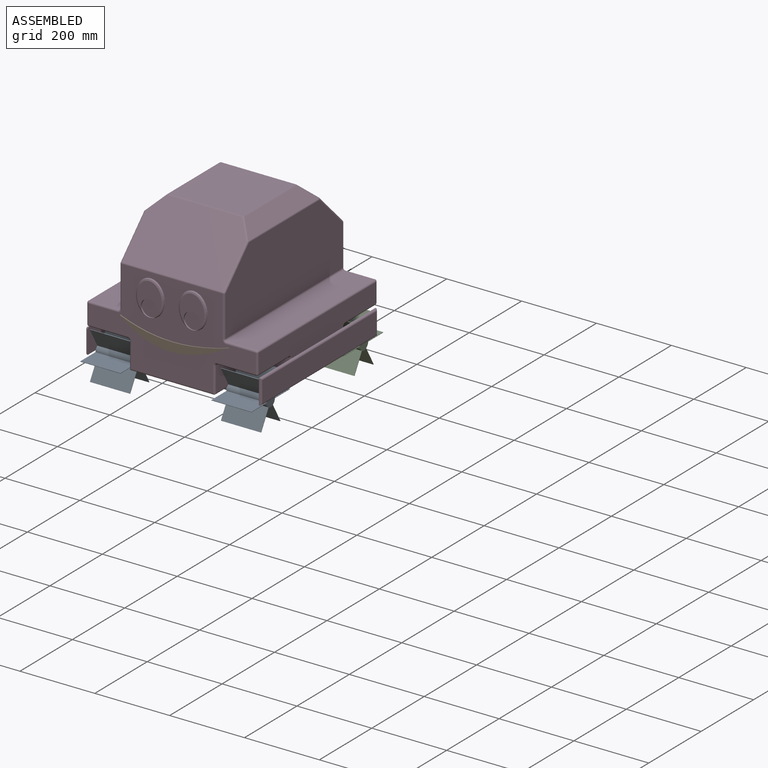
[diagram: assembled view]
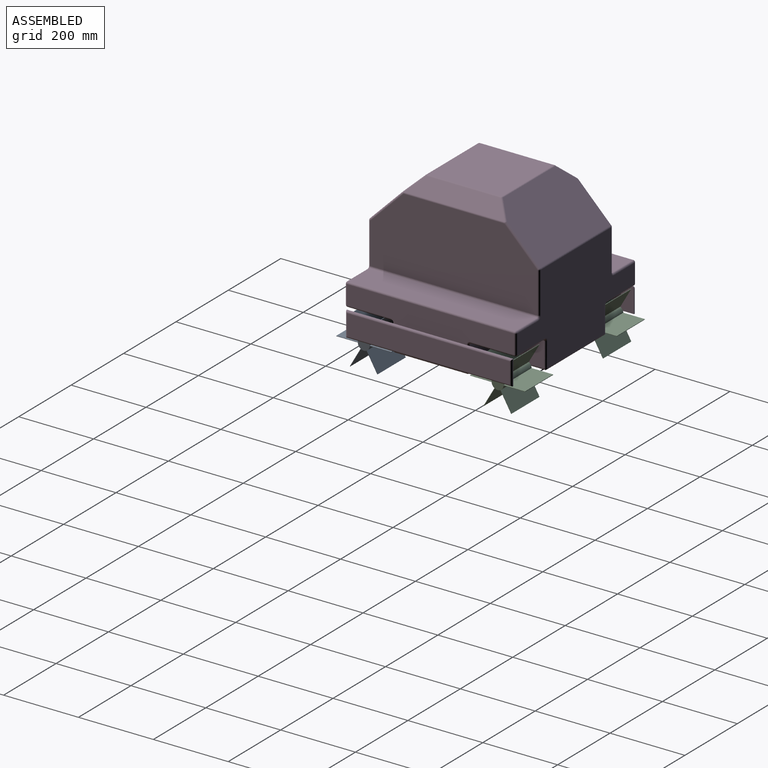
[diagram: assembled view, second angle]
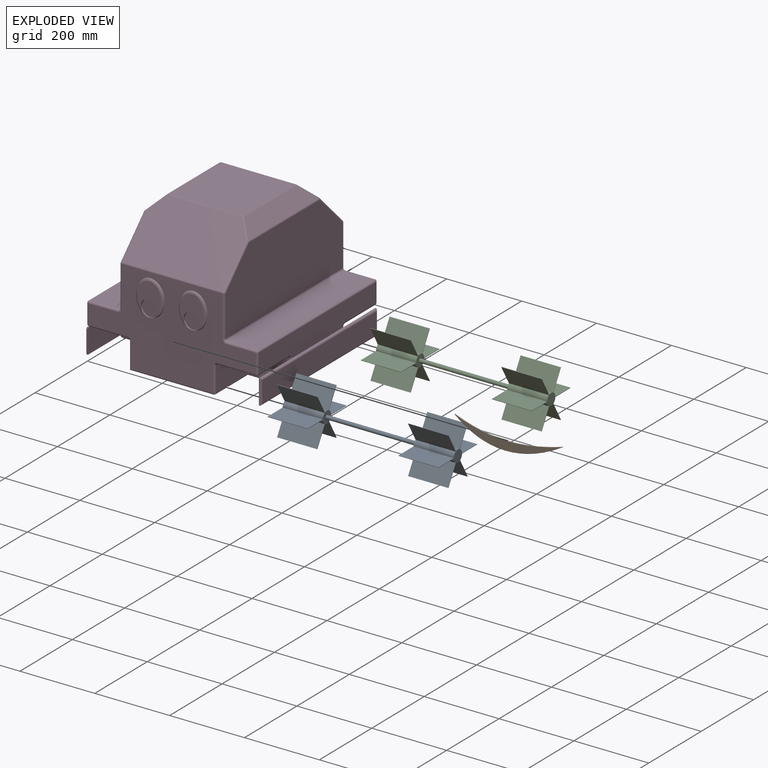
[diagram: exploded view]
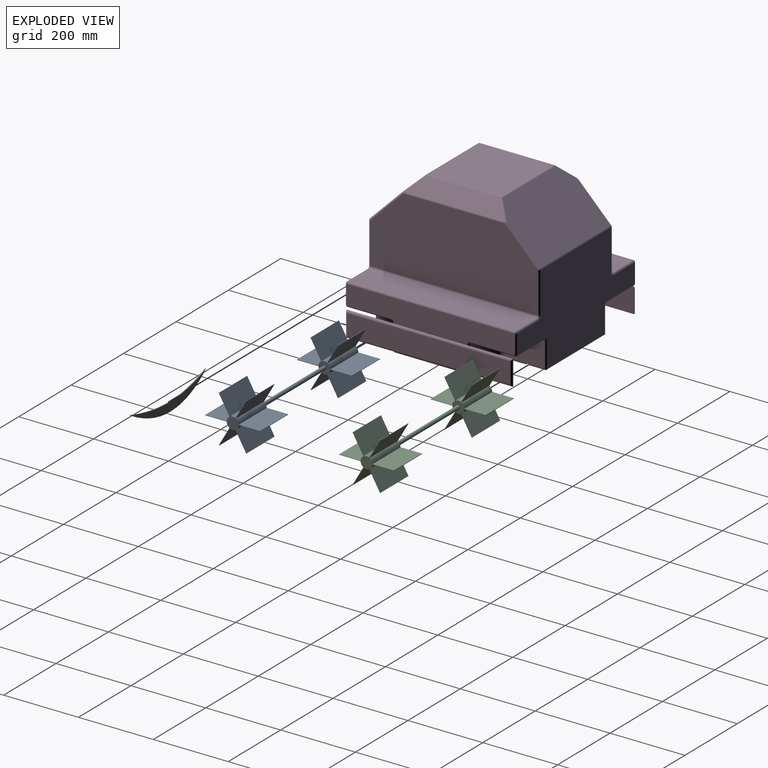
[diagram: exploded view, second angle]
ASSEMBLY  parts=4 mates=2
PART A: 53 faces, bbox 127.6x146.7x457.2 mm
  f0: plane 146.72x127.62mm, normal (0,0,1), area 1177.2mm2, adj f1,f2,f3,f4,f5,f6,f7,f8
  f1: plane 107.19x1.12mm, normal (0,1,0), area 119.8mm2, adj f0,f2,f24,f27
  f2: plane 107.19x57.49mm, normal (1,0,0), area 6162.5mm2, adj f0,f1,f3,f27
  f3: cylinder r=15.88mm len=107.19mm, axis (0,0,-1), area 1662.1mm2, adj f0,f2,f4,f27
  f4: plane 107.19x49.79mm, normal (-0.5,0.87,0), area 6162.5mm2, adj f0,f3,f5,f27
  f5: plane 107.19x0.97mm, normal (0.87,0.5,0), area 119.8mm2, adj f0,f4,f6,f27
  f6: plane 107.19x49.79mm, normal (0.5,-0.87,0), area 6162.5mm2, adj f0,f5,f7,f27
  f7: cylinder r=15.88mm len=107.19mm, axis (0,0,-1), area 1662.1mm2, adj f0,f6,f8,f27
  f8: plane 107.19x49.79mm, normal (0.5,0.87,0), area 6162.5mm2, adj f0,f7,f9,f27
  f9: plane 107.19x0.97mm, normal (0.87,-0.5,0), area 119.8mm2, adj f0,f8,f10,f27
  f10: plane 107.19x49.79mm, normal (-0.5,-0.87,0), area 6162.5mm2, adj f0,f9,f11,f27
  f11: cylinder r=15.88mm len=107.19mm, axis (0,0,-1), area 1662.1mm2, adj f0,f10,f12,f27
  f12: plane 107.19x57.49mm, normal (1,0,0), area 6162.5mm2, adj f0,f11,f13,f27
  f13: plane 107.19x1.12mm, normal (0,-1,0), area 119.8mm2, adj f0,f12,f14,f27
  f14: plane 107.19x57.49mm, normal (-1,0,0), area 6162.5mm2, adj f0,f13,f15,f27
  f15: cylinder r=15.88mm len=107.19mm, axis (0,0,-1), area 1662.1mm2, adj f0,f14,f16,f27
  f16: plane 107.19x49.79mm, normal (0.5,-0.87,0), area 6162.5mm2, adj f0,f15,f17,f27
  f17: plane 107.19x0.97mm, normal (-0.87,-0.5,0), area 119.8mm2, adj f0,f16,f18,f27
  f18: plane 107.19x49.79mm, normal (-0.5,0.87,0), area 6162.5mm2, adj f0,f17,f19,f27
  f19: cylinder r=15.88mm len=107.19mm, axis (0,0,-1), area 1662.1mm2, adj f0,f18,f20,f27
  f20: plane 107.19x49.79mm, normal (-0.5,-0.87,0), area 6162.5mm2, adj f0,f19,f21,f27
  f21: plane 107.19x0.97mm, normal (-0.87,0.5,0), area 119.8mm2, adj f0,f20,f22,f27
  f22: plane 107.19x49.79mm, normal (0.5,0.87,0), area 6162.5mm2, adj f0,f21,f23,f27
  f23: cylinder r=15.88mm len=107.19mm, axis (0,0,-1), area 1662.1mm2, adj f0,f22,f24,f27
  f24: plane 107.19x57.49mm, normal (-1,0,0), area 6162.5mm2, adj f0,f1,f23,f27
  f25: plane 146.72x127.62mm, normal (0,0,1), area 1096.1mm2, adj f26,f28,f29,f30,f31,f32,f33,f34
  f26: cylinder r=5.08mm len=242.82mm, axis (0,0,-1), area 7750.6mm2, adj f25,f27
  f27: plane 146.72x127.62mm, normal (0,0,-1), area 1096.1mm2, adj f1,f2,f3,f4,f5,f6,f7,f8
  f28: plane 107.19x57.49mm, normal (-1,0,0), area 6162.5mm2, adj f25,f29,f51,f52
  f29: cylinder r=15.88mm len=107.19mm, axis (0,0,-1), area 1662.1mm2, adj f25,f28,f30,f52
  f30: plane 107.19x49.79mm, normal (0.5,0.87,0), area 6162.5mm2, adj f25,f29,f31,f52
  f31: plane 107.19x0.97mm, normal (-0.87,0.5,0), area 119.8mm2, adj f25,f30,f32,f52
  f32: plane 107.19x49.79mm, normal (-0.5,-0.87,0), area 6162.5mm2, adj f25,f31,f33,f52
  f33: cylinder r=15.88mm len=107.19mm, axis (0,0,-1), area 1662.1mm2, adj f25,f32,f34,f52
  f34: plane 107.19x49.79mm, normal (-0.5,0.87,0), area 6162.5mm2, adj f25,f33,f35,f52
  f35: plane 107.19x0.97mm, normal (-0.87,-0.5,0), area 119.8mm2, adj f25,f34,f36,f52
  f36: plane 107.19x49.79mm, normal (0.5,-0.87,0), area 6162.5mm2, adj f25,f35,f37,f52
  f37: cylinder r=15.88mm len=107.19mm, axis (0,0,-1), area 1662.1mm2, adj f25,f36,f38,f52
  f38: plane 107.19x57.49mm, normal (-1,0,0), area 6162.5mm2, adj f25,f37,f39,f52
  f39: plane 107.19x1.12mm, normal (0,-1,0), area 119.8mm2, adj f25,f38,f40,f52
  f40: plane 107.19x57.49mm, normal (1,0,0), area 6162.5mm2, adj f25,f39,f41,f52
  f41: cylinder r=15.88mm len=107.19mm, axis (0,0,-1), area 1662.1mm2, adj f25,f40,f42,f52
  f42: plane 107.19x49.79mm, normal (-0.5,-0.87,0), area 6162.5mm2, adj f25,f41,f43,f52
  f43: plane 107.19x0.97mm, normal (0.87,-0.5,0), area 119.8mm2, adj f25,f42,f44,f52
  f44: plane 107.19x49.79mm, normal (0.5,0.87,0), area 6162.5mm2, adj f25,f43,f45,f52
  f45: cylinder r=15.88mm len=107.19mm, axis (0,0,-1), area 1662.1mm2, adj f25,f44,f46,f52
  f46: plane 107.19x49.79mm, normal (0.5,-0.87,0), area 6162.5mm2, adj f25,f45,f47,f52
  f47: plane 107.19x0.97mm, normal (0.87,0.5,0), area 119.8mm2, adj f25,f46,f48,f52
  f48: plane 107.19x49.79mm, normal (-0.5,0.87,0), area 6162.5mm2, adj f25,f47,f49,f52
  f49: cylinder r=15.88mm len=107.19mm, axis (0,0,-1), area 1662.1mm2, adj f25,f48,f50,f52
  f50: plane 107.19x57.49mm, normal (1,0,0), area 6162.5mm2, adj f25,f49,f51,f52
  f51: plane 107.19x1.12mm, normal (0,1,0), area 119.8mm2, adj f25,f28,f50,f52
  f52: plane 146.72x127.62mm, normal (0,0,-1), area 1177.2mm2, adj f28,f29,f30,f31,f32,f33,f34,f35
PART B: 4 faces, bbox 290.5x61.4x2.5 mm
  f0: extruded ~290.54x27.83mm, area 754.2mm2, adj f1,f2,f3
  f1: extruded ~290.54x52.04mm, area 795.6mm2, adj f0,f2,f3
  f2: plane 290.54x61.4mm, normal (0,0,1), area 4771.3mm2, adj f0,f1
  f3: plane 290.54x61.4mm, normal (0,0,-1), area 4771.3mm2, adj f0,f1
PART C: same geometry as A
PART D: 177 faces, bbox 469.9x462.3x381 mm
  f0: plane 447.04x61.4mm, normal (1,0,0), area 24910mm2, adj f12,f13,f44,f45,f52,f58,f131,f166
  f1: plane 269.24x124.02mm, normal (0,-0.71,0.71), area 45479.1mm2, adj f3,f8,f15,f122,f140,f165
  f2: plane 269.24x124.02mm, normal (0,0.71,0.71), area 45479.1mm2, adj f4,f9,f16,f126,f145,f156
  f3: cylinder r=5.08mm len=269.24mm, axis (1,0,0), area 1074.2mm2, adj f1,f10,f138,f164
  f4: cylinder r=5.08mm len=269.24mm, axis (-1,0,0), area 1074.2mm2, adj f2,f11,f143,f153
  f5: cylinder r=5.08mm len=51.24mm, axis (0,0,-1), area 408.8mm2, adj f10,f20,f67,f154
  f6: cylinder r=5.08mm len=51.24mm, axis (0,0,1), area 408.8mm2, adj f11,f20,f102,f149
  f7: plane 269.24x35.12mm, normal (-0.71,0,0.71), area 11629.3mm2, adj f8,f9,f121,f161
  f8: cylinder r=5.08mm len=38.72mm, axis (-0.58,-0.58,-0.58), area 323.6mm2, adj f1,f7,f120,f163
  f9: cylinder r=5.08mm len=38.72mm, axis (-0.58,0.58,-0.58), area 323.6mm2, adj f2,f7,f123,f159
  f10: plane 447.04x246.82mm, normal (0,-1,0), area 60379.1mm2, adj f3,f5,f12,f42,f43,f49,f53,f59
  f11: plane 447.04x246.82mm, normal (0,1,0), area 71780.1mm2, adj f4,f6,f13,f74,f80,f84,f88,f91
  f12: cylinder r=5.08mm len=51.24mm, axis (0,0,1), area 408.8mm2, adj f0,f10,f46,f130
  f13: cylinder r=5.08mm len=51.24mm, axis (0,0,-1), area 408.8mm2, adj f0,f11,f66,f133
  f14: plane 269.24x35.12mm, normal (0.71,0,0.71), area 11629.3mm2, adj f15,f16,f125,f144
  f15: cylinder r=5.08mm len=38.72mm, axis (0.58,-0.58,-0.58), area 323.6mm2, adj f1,f14,f124,f142
  f16: cylinder r=5.08mm len=38.72mm, axis (0.58,0.58,-0.58), area 323.6mm2, adj f2,f14,f127,f146
  f17: plane 447.04x346.87mm, normal (0,0,-1), area 119965.4mm2, adj f34,f35,f54,f55,f63,f71,f78,f79
  f18: plane 218.44x39.93mm, normal (0,0,-1), area 8722.6mm2, adj f34,f83,f87,f88
  f19: plane 218.44x39.93mm, normal (0,0,-1), area 8722.6mm2, adj f35,f63,f70,f78
  f20: plane 447.04x61.4mm, normal (-1,0,0), area 24910mm2, adj f5,f6,f75,f81,f103,f104,f105,f150
  f21: plane 198.99x198.99mm, normal (0,0,1), area 39597.7mm2, adj f121,f122,f125,f126
  f22: plane 116.84x66.04mm, normal (-1,0,0), area 7716.1mm2, adj f60,f69,f77,f78
  f23: plane 104.14x66.04mm, normal (0,-1,0), area 6877.4mm2, adj f76,f77,f85,f86
  f24: plane 116.84x104.14mm, normal (0,0,-1), area 12167.7mm2, adj f59,f60,f75,f76
  f25: plane 121.92x66.04mm, normal (1,0,0), area 8051.6mm2, adj f26,f50,f62,f63
  f26: plane 109.22x66.04mm, normal (0,-1,0), area 7212.9mm2, adj f25,f47,f48,f54
  f27: plane 116.84x104.14mm, normal (0,0,-1), area 12167.7mm2, adj f44,f47,f49,f50
  f28: plane 104.14x66.04mm, normal (0,1,0), area 6877.4mm2, adj f56,f57,f71,f72
  f29: plane 116.84x66.04mm, normal (1,0,0), area 7716.1mm2, adj f72,f73,f83,f84
  f30: plane 116.84x104.14mm, normal (0,0,-1), area 12167.7mm2, adj f57,f58,f73,f74
  f31: plane 116.84x66.04mm, normal (-1,0,0), area 7716.1mm2, adj f87,f91,f94,f95
  f32: plane 104.14x66.04mm, normal (0,1,0), area 6877.4mm2, adj f93,f94,f100,f101
  f33: plane 116.84x104.14mm, normal (0,0,-1), area 12167.7mm2, adj f95,f99,f101,f104
  f34: cylinder r=5.08mm len=218.44mm, axis (-1,0,0), area 3484.3mm2, adj f17,f18,f83,f87
  f35: cylinder r=5.08mm len=218.44mm, axis (-1,0,0), area 3484.3mm2, adj f17,f19,f63,f78
  f36: cylinder r=22.86mm len=45.72mm, axis (0,1,0), area 673mm2, adj f37,f38,f43
  f37: plane 75.28x66.06mm, normal (0,-1,0), area 2908.4mm2, adj f36,f43
  f38: plane 45.72x45.72mm, normal (0,-1,0), area 1641.7mm2, adj f36
  f39: cylinder r=22.86mm len=45.72mm, axis (0,1,0), area 673mm2, adj f40,f41,f42
  f40: plane 75.28x66.06mm, normal (0,-1,0), area 2908.4mm2, adj f39,f42
  f41: plane 45.72x45.72mm, normal (0,-1,0), area 1641.7mm2, adj f39
  f42: bspline ~95.12x76.17mm, area 1933.1mm2, adj f10,f39,f40
  f43: bspline ~95.12x76.17mm, area 1933.1mm2, adj f10,f36,f37
  f44: cylinder r=5.08mm len=116.84mm, axis (0,-1,0), area 932.3mm2, adj f0,f27,f45,f46
  f45: torus R=10.16mm, axis (1,0,0), area 86.8mm2, adj f0,f44,f47,f48
  f46: sphere r=5.08mm, area 55.3mm2, adj f12,f44,f49
  f47: cylinder r=5.08mm len=109.22mm, axis (1,0,0), area 851.3mm2, adj f26,f27,f45,f50
  f48: cylinder r=5.08mm len=66.04mm, axis (0,0,1), area 527mm2, adj f26,f45,f51,f171
  f49: cylinder r=5.08mm len=104.14mm, axis (-1,0,0), area 831mm2, adj f10,f27,f46,f53
  f50: cylinder r=5.08mm len=121.92mm, axis (0,1,0), area 952.6mm2, adj f25,f27,f47,f53
  f51: sphere r=5.08mm, area 55.3mm2, adj f48,f54,f55
  f52: torus R=10.16mm, axis (1,0,0), area 86.8mm2, adj f0,f56,f57,f58
  f53: torus R=10.16mm, axis (0,1,0), area 86.8mm2, adj f10,f49,f50,f62
  f54: cylinder r=5.08mm len=114.3mm, axis (1,0,0), area 891.8mm2, adj f17,f26,f51,f63
  f55: cylinder r=5.08mm len=193.04mm, axis (0,1,0), area 1540.4mm2, adj f17,f51,f64,f167
  f56: cylinder r=5.08mm len=66.04mm, axis (0,0,-1), area 527mm2, adj f28,f52,f64,f170
  f57: cylinder r=5.08mm len=104.14mm, axis (-1,0,0), area 831mm2, adj f28,f30,f52,f65
  f58: cylinder r=5.08mm len=116.84mm, axis (0,-1,0), area 932.3mm2, adj f0,f30,f52,f66
  f59: cylinder r=5.08mm len=104.14mm, axis (-1,0,0), area 831mm2, adj f10,f24,f61,f67
  f60: cylinder r=5.08mm len=116.84mm, axis (0,-1,0), area 932.3mm2, adj f22,f24,f61,f68
  f61: torus R=10.16mm, axis (0,1,0), area 86.8mm2, adj f10,f59,f60,f69
  f62: cylinder r=5.08mm len=69.63mm, axis (0,0,-1), area 541.3mm2, adj f10,f25,f53,f63,f70
  f63: cylinder r=5.08mm len=130.59mm, axis (0,1,0), area 938.2mm2, adj f17,f19,f25,f35,f54,f62,f70
  f64: sphere r=5.08mm, area 25.8mm2, adj f55,f56,f71
  f65: sphere r=5.08mm, area 25.8mm2, adj f57,f72,f73
  f66: sphere r=5.08mm, area 25.8mm2, adj f13,f58,f74
  f67: sphere r=5.08mm, area 40.5mm2, adj f5,f59,f75
  f68: sphere r=5.08mm, area 25.8mm2, adj f60,f76,f77
  f69: cylinder r=5.08mm len=69.63mm, axis (0,0,1), area 541.3mm2, adj f10,f22,f61,f70,f78
  f70: cylinder r=5.08mm len=225.62mm, axis (1,0,0), area 1771.7mm2, adj f10,f19,f62,f63,f69,f78
  f71: cylinder r=5.08mm len=104.14mm, axis (-1,0,0), area 831mm2, adj f17,f28,f64,f79
  f72: cylinder r=5.08mm len=66.04mm, axis (0,0,-1), area 527mm2, adj f28,f29,f65,f79
  f73: cylinder r=5.08mm len=116.84mm, axis (0,1,0), area 932.3mm2, adj f29,f30,f65,f80
  f74: cylinder r=5.08mm len=104.14mm, axis (1,0,0), area 831mm2, adj f11,f30,f66,f80
  f75: cylinder r=5.08mm len=116.84mm, axis (0,1,0), area 932.3mm2, adj f20,f24,f67,f81
  f76: cylinder r=5.08mm len=104.14mm, axis (1,0,0), area 831mm2, adj f23,f24,f68,f81
  f77: cylinder r=5.08mm len=66.04mm, axis (0,0,-1), area 527mm2, adj f22,f23,f68,f82
  f78: cylinder r=5.08mm len=120.43mm, axis (0,-1,0), area 877.4mm2, adj f17,f19,f22,f35,f69,f70,f82
  f79: torus R=10.16mm, axis (0,0,1), area 86.8mm2, adj f17,f71,f72,f83
  f80: torus R=10.16mm, axis (0,1,0), area 86.8mm2, adj f11,f73,f74,f84
  f81: torus R=10.16mm, axis (1,0,0), area 86.8mm2, adj f20,f75,f76,f85
  f82: torus R=10.16mm, axis (0,0,1), area 86.8mm2, adj f17,f77,f78,f86
  f83: cylinder r=5.08mm len=120.43mm, axis (0,1,0), area 877.4mm2, adj f17,f18,f29,f34,f79,f84,f88
  f84: cylinder r=5.08mm len=69.63mm, axis (0,0,1), area 541.3mm2, adj f11,f29,f80,f83,f88
  f85: cylinder r=5.08mm len=66.04mm, axis (0,0,-1), area 527mm2, adj f23,f81,f89,f109
  f86: cylinder r=5.08mm len=104.14mm, axis (1,0,0), area 831mm2, adj f17,f23,f82,f89
  f87: cylinder r=5.08mm len=120.43mm, axis (0,-1,0), area 877.4mm2, adj f17,f18,f31,f34,f88,f90,f91
  f88: cylinder r=5.08mm len=225.62mm, axis (-1,0,0), area 1771.7mm2, adj f11,f18,f83,f84,f87,f91
  f89: sphere r=5.08mm, area 40.5mm2, adj f85,f86,f92
  f90: torus R=10.16mm, axis (0,0,1), area 86.8mm2, adj f17,f87,f93,f94
  f91: cylinder r=5.08mm len=69.63mm, axis (0,0,-1), area 541.3mm2, adj f11,f31,f87,f88,f96
  f92: cylinder r=5.08mm len=193.04mm, axis (0,-1,0), area 1540.4mm2, adj f17,f89,f97,f106
  f93: cylinder r=5.08mm len=104.14mm, axis (-1,0,0), area 831mm2, adj f17,f32,f90,f97
  f94: cylinder r=5.08mm len=66.04mm, axis (0,0,1), area 527mm2, adj f31,f32,f90,f98
  f95: cylinder r=5.08mm len=116.84mm, axis (0,-1,0), area 932.3mm2, adj f31,f33,f96,f98
  f96: torus R=10.16mm, axis (0,1,0), area 86.8mm2, adj f11,f91,f95,f99
  f97: sphere r=5.08mm, area 55.3mm2, adj f92,f93,f100
  f98: sphere r=5.08mm, area 40.5mm2, adj f94,f95,f101
  f99: cylinder r=5.08mm len=104.14mm, axis (1,0,0), area 831mm2, adj f11,f33,f96,f102
  f100: cylinder r=5.08mm len=66.04mm, axis (0,0,1), area 527mm2, adj f32,f97,f103,f110
  f101: cylinder r=5.08mm len=104.14mm, axis (-1,0,0), area 831mm2, adj f32,f33,f98,f103
  f102: sphere r=5.08mm, area 55.3mm2, adj f6,f99,f104
  f103: torus R=10.16mm, axis (1,0,0), area 86.8mm2, adj f20,f100,f101,f104
  f104: cylinder r=5.08mm len=116.84mm, axis (0,1,0), area 932.3mm2, adj f20,f33,f102,f103
  f105: plane 436.88x1.27mm, normal (0,0,1), area 554.8mm2, adj f20,f109,f110,f112,f114,f115
  f106: plane 447.04x1.27mm, normal (0,0,-1), area 567.7mm2, adj f92,f108,f109,f110,f111,f118
  f107: plane 436.88x55.88mm, normal (-1,0,0), area 24412.9mm2, adj f115,f116,f118,f119
  f108: plane 60.96x1.27mm, normal (0,-1,0), area 77.4mm2, adj f106,f109,f112,f116
  f109: plane 127x66.04mm, normal (1,0,0), area 8381.5mm2, adj f85,f105,f106,f108,f112
  f110: plane 127x66.04mm, normal (1,0,0), area 8381.5mm2, adj f100,f105,f106,f111,f114
  f111: plane 60.96x1.27mm, normal (0,1,0), area 77.4mm2, adj f106,f110,f114,f119
  f112: cylinder r=5.08mm len=5.08mm, axis (-1,0,0), area 10.1mm2, adj f105,f108,f109,f113
  f113: sphere r=5.08mm, area 40.5mm2, adj f112,f115,f116
  f114: cylinder r=5.08mm len=5.08mm, axis (-1,0,0), area 10.1mm2, adj f105,f110,f111,f117
  f115: cylinder r=5.08mm len=436.88mm, axis (0,-1,0), area 3486.1mm2, adj f105,f107,f113,f117
  f116: cylinder r=5.08mm len=60.96mm, axis (0,0,-1), area 466.2mm2, adj f107,f108,f113,f118
  f117: sphere r=5.08mm, area 55.3mm2, adj f114,f115,f119
  f118: cylinder r=5.08mm len=447.04mm, axis (0,1,0), area 3526.7mm2, adj f106,f107,f116,f119
  f119: cylinder r=5.08mm len=60.96mm, axis (0,0,1), area 466.2mm2, adj f107,f111,f117,f118
  f120: sphere r=5.08mm, area 11.9mm2, adj f8,f121,f122
  f121: cylinder r=5.08mm len=198.99mm, axis (0,-1,0), area 793.9mm2, adj f7,f21,f120,f123
  f122: cylinder r=5.08mm len=198.99mm, axis (1,0,0), area 793.9mm2, adj f1,f21,f120,f124
  f123: sphere r=5.08mm, area 20mm2, adj f9,f121,f126
  f124: sphere r=5.08mm, area 8.8mm2, adj f15,f122,f125
  f125: cylinder r=5.08mm len=198.99mm, axis (0,-1,0), area 793.9mm2, adj f14,f21,f124,f127
  f126: cylinder r=5.08mm len=198.99mm, axis (1,0,0), area 793.9mm2, adj f2,f21,f123,f127
  f127: sphere r=5.08mm, area 15.9mm2, adj f16,f125,f126
  f128: plane 447.04x78.74mm, normal (0,0,1), area 35199.9mm2, adj f131,f132,f136,f137
  f129: plane 447.04x198.12mm, normal (1,0,0), area 80664.4mm2, adj f135,f137,f140,f141,f144,f145
  f130: sphere r=5.08mm, area 25.8mm2, adj f12,f131,f132
  f131: cylinder r=5.08mm len=447.04mm, axis (0,-1,0), area 3567.2mm2, adj f0,f128,f130,f133
  f132: cylinder r=5.08mm len=78.74mm, axis (-1,0,0), area 628.3mm2, adj f10,f128,f130,f134
  f133: sphere r=5.08mm, area 55.3mm2, adj f13,f131,f136
  f134: torus R=10.16mm, axis (0,1,0), area 86.8mm2, adj f10,f132,f135,f137
  f135: cylinder r=5.08mm len=109.22mm, axis (0,0,1), area 871.5mm2, adj f10,f129,f134,f138
  f136: cylinder r=5.08mm len=78.74mm, axis (1,0,0), area 628.3mm2, adj f11,f128,f133,f139
  f137: cylinder r=5.08mm len=447.04mm, axis (0,1,0), area 3567.2mm2, adj f128,f129,f134,f139
  f138: sphere r=5.08mm, area 20.3mm2, adj f3,f135,f140
  f139: torus R=10.16mm, axis (0,1,0), area 86.8mm2, adj f11,f136,f137,f141
  f140: cylinder r=5.08mm len=92.49mm, axis (0,0.71,0.71), area 1003.2mm2, adj f1,f129,f138,f142
  f141: cylinder r=5.08mm len=109.22mm, axis (0,0,-1), area 871.5mm2, adj f11,f129,f139,f143
  f142: sphere r=5.08mm, area 16.8mm2, adj f15,f140,f144
  f143: sphere r=5.08mm, area 12.9mm2, adj f4,f141,f145
  f144: cylinder r=5.08mm len=269.24mm, axis (0,-1,0), area 1074.2mm2, adj f14,f129,f142,f146
  f145: cylinder r=5.08mm len=92.49mm, axis (0,-0.71,0.71), area 1003.2mm2, adj f2,f129,f143,f146
  f146: sphere r=5.08mm, area 24.1mm2, adj f16,f144,f145
  f147: plane 447.04x78.74mm, normal (0,0,1), area 35199.9mm2, adj f150,f151,f157,f158
  f148: plane 447.04x198.12mm, normal (-1,0,0), area 80664.4mm2, adj f152,f156,f158,f161,f162,f165
  f149: sphere r=5.08mm, area 40.5mm2, adj f6,f150,f151
  f150: cylinder r=5.08mm len=447.04mm, axis (0,-1,0), area 3567.2mm2, adj f20,f147,f149,f154
  f151: cylinder r=5.08mm len=78.74mm, axis (-1,0,0), area 628.3mm2, adj f11,f147,f149,f155
  f152: cylinder r=5.08mm len=109.22mm, axis (0,0,-1), area 871.5mm2, adj f11,f148,f153,f155
  f153: sphere r=5.08mm, area 20.3mm2, adj f4,f152,f156
  f154: sphere r=5.08mm, area 40.5mm2, adj f5,f150,f157
  f155: torus R=10.16mm, axis (0,1,0), area 86.8mm2, adj f11,f151,f152,f158
  f156: cylinder r=5.08mm len=92.49mm, axis (0,0.71,-0.71), area 1003.2mm2, adj f2,f148,f153,f159
  f157: cylinder r=5.08mm len=78.74mm, axis (1,0,0), area 628.3mm2, adj f10,f147,f154,f160
  f158: cylinder r=5.08mm len=447.04mm, axis (0,-1,0), area 3567.2mm2, adj f147,f148,f155,f160
  f159: sphere r=5.08mm, area 16.8mm2, adj f9,f156,f161
  f160: torus R=10.16mm, axis (0,1,0), area 86.8mm2, adj f10,f157,f158,f162
  f161: cylinder r=5.08mm len=269.24mm, axis (0,-1,0), area 1074.2mm2, adj f7,f148,f159,f163
  f162: cylinder r=5.08mm len=109.22mm, axis (0,0,1), area 871.5mm2, adj f10,f148,f160,f164
  f163: sphere r=5.08mm, area 24.1mm2, adj f8,f161,f165
  f164: sphere r=5.08mm, area 12.9mm2, adj f3,f162,f165
  f165: cylinder r=5.08mm len=92.49mm, axis (0,-0.71,-0.71), area 1003.2mm2, adj f1,f148,f163,f164
  f166: plane 444.5x1.27mm, normal (0,0,1), area 564.5mm2, adj f0,f169,f170,f171,f172,f174
  f167: plane 444.5x1.27mm, normal (0,0,-1), area 564.5mm2, adj f55,f169,f170,f171,f172,f175
  f168: plane 434.34x55.88mm, normal (1,0,0), area 24270.9mm2, adj f173,f174,f175,f176
  f169: plane 66.04x1.27mm, normal (0,1,0), area 83.9mm2, adj f166,f167,f170,f176
  f170: plane 124.46x66.04mm, normal (-1,0,0), area 8219.3mm2, adj f56,f166,f167,f169
  f171: plane 127x66.04mm, normal (-1,0,0), area 8387.1mm2, adj f48,f166,f167,f172
  f172: plane 66.04x1.27mm, normal (0,-1,0), area 83.9mm2, adj f166,f167,f171,f173
  f173: cylinder r=5.08mm len=66.04mm, axis (0,0,1), area 486.4mm2, adj f168,f172,f174,f175
  f174: cylinder r=5.08mm len=444.5mm, axis (0,1,0), area 3506.4mm2, adj f166,f168,f173,f176
  f175: cylinder r=5.08mm len=444.5mm, axis (0,-1,0), area 3506.4mm2, adj f167,f168,f173,f176
  f176: cylinder r=5.08mm len=66.04mm, axis (0,0,-1), area 486.4mm2, adj f168,f169,f174,f175
PLACE A rot(axis=(0,1,0),90deg) t=(-174.98,-160.45,-1.36)mm
PLACE B rot(axis=(1,0,0),90deg) t=(54.34,-211.58,91)mm
PLACE C rot(axis=(0,1,0),90deg) t=(-175.74,196.57,-1.36)mm
PLACE D t=(53.62,18.06,-1.36)mm
MATE revolute A.f3 <-> D.f35  axis (-1,0,0) through (53.62,-160.45,-1.36)mm
MATE revolute C.f3 <-> D.f34  axis (-1,0,0) through (174.27,196.57,-1.36)mm
